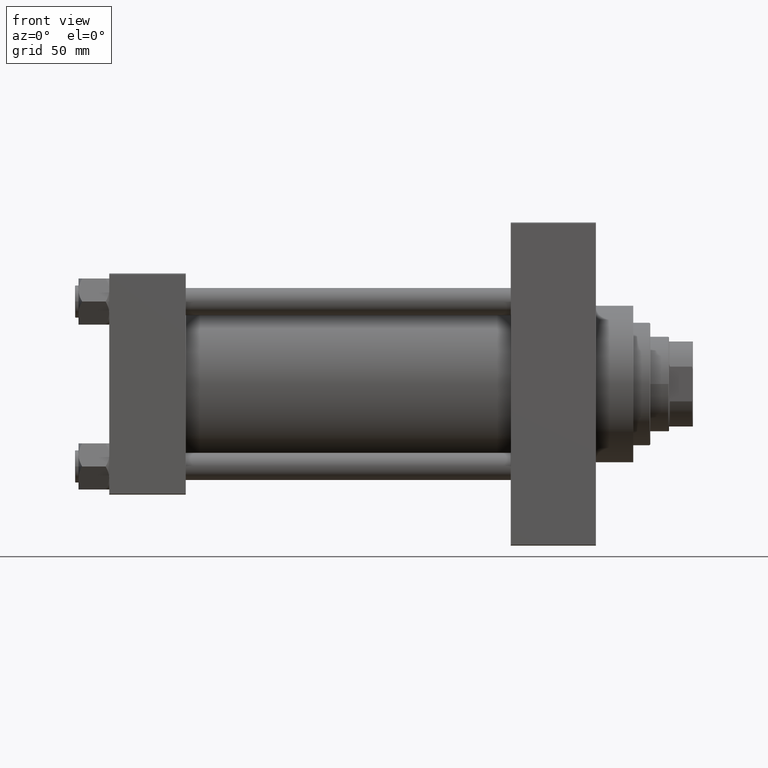
[diagram: clean part render]
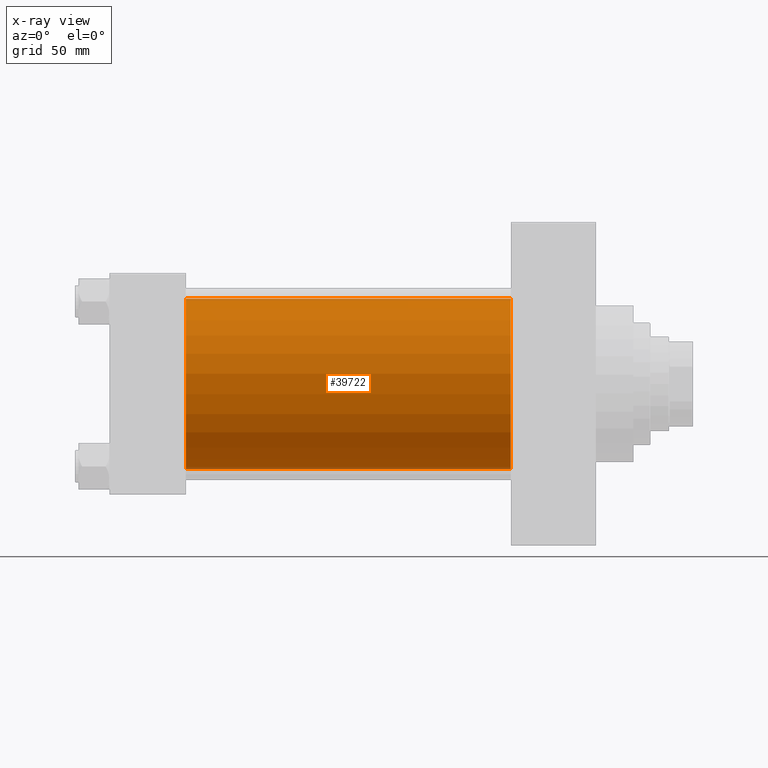
[diagram: x-ray — body ghosted, one internal face saturated and labeled with its STEP entity id]
A machine part, front view, then the same camera in x-ray: the body is ghosted and one INTERNAL B-rep face — a face not visible from any outside direction — is saturated and labeled: STEP entity #39722.
In plain terms, the highlighted cylindrical surface (partial cylindrical patch) has radius 50 mm, axis along (-1, -0, -0).
Its self-contained STEP definition (entity closure, byte-faithful):
#915 = DIRECTION ( 'NONE',  ( 0.000000000000000000, 0.000000000000000000, -1.000000000000000000 ) ) ;
#1973 = DIRECTION ( 'NONE',  ( 0.000000000000000000, 0.000000000000000000, -1.000000000000000000 ) ) ;
#2129 = EDGE_CURVE ( 'NONE', #14960, #21451, #6153, .T. ) ;
#3793 = CYLINDRICAL_SURFACE ( 'NONE', #22388, 50.00000000000000000 ) ;
#5169 = LINE ( 'NONE', #13347, #45187 ) ;
#6153 = LINE ( 'NONE', #12915, #45536 ) ;
#7428 = DIRECTION ( 'NONE',  ( -1.000000000000000000, -0.000000000000000000, -0.000000000000000000 ) ) ;
#12915 = CARTESIAN_POINT ( 'NONE',  ( 236.0000000000000000, 3.521148781771555838E-15, -50.00000000000000000 ) ) ;
#13347 = CARTESIAN_POINT ( 'NONE',  ( 236.0000000000000000, -2.602085213965210642E-15, 50.00000000000000000 ) ) ;
#13722 = CARTESIAN_POINT ( 'NONE',  ( 236.0000000000000000, 3.521148781771555838E-15, -50.00000000000000000 ) ) ;
#13768 = DIRECTION ( 'NONE',  ( 1.000000000000000000, 0.000000000000000000, 0.000000000000000000 ) ) ;
#14229 = CARTESIAN_POINT ( 'NONE',  ( 45.00000000000000000, 3.521148781771555838E-15, -50.00000000000000000 ) ) ;
#14960 = VERTEX_POINT ( 'NONE', #13722 ) ;
#16284 = CIRCLE ( 'NONE', #21699, 50.00000000000000000 ) ;
#18551 = EDGE_CURVE ( 'NONE', #20123, #21451, #42743, .T. ) ;
#19017 = CARTESIAN_POINT ( 'NONE',  ( 236.0000000000000000, -2.602085213965210642E-15, 0.000000000000000000 ) ) ;
#20123 = VERTEX_POINT ( 'NONE', #29374 ) ;
#20783 = CARTESIAN_POINT ( 'NONE',  ( 45.00000000000000000, -2.602085213965210642E-15, 0.000000000000000000 ) ) ;
#21451 = VERTEX_POINT ( 'NONE', #14229 ) ;
#21699 = AXIS2_PLACEMENT_3D ( 'NONE', #19017, #41477, #915 ) ;
#21889 = DIRECTION ( 'NONE',  ( 0.000000000000000000, 0.000000000000000000, 1.000000000000000000 ) ) ;
#21922 = AXIS2_PLACEMENT_3D ( 'NONE', #20783, #13768, #1973 ) ;
#22388 = AXIS2_PLACEMENT_3D ( 'NONE', #25268, #7428, #21889 ) ;
#23018 = ORIENTED_EDGE ( 'NONE', *, *, #25486, .F. ) ;
#23993 = ORIENTED_EDGE ( 'NONE', *, *, #18551, .F. ) ;
#24738 = ORIENTED_EDGE ( 'NONE', *, *, #41453, .T. ) ;
#25268 = CARTESIAN_POINT ( 'NONE',  ( 236.0000000000000000, -2.602085213965210642E-15, 0.000000000000000000 ) ) ;
#25486 = EDGE_CURVE ( 'NONE', #37900, #20123, #5169, .T. ) ;
#28406 = CARTESIAN_POINT ( 'NONE',  ( 236.0000000000000000, -2.602085213965210642E-15, 50.00000000000000000 ) ) ;
#29374 = CARTESIAN_POINT ( 'NONE',  ( 45.00000000000000000, -2.602085213965210642E-15, 50.00000000000000000 ) ) ;
#32216 = ORIENTED_EDGE ( 'NONE', *, *, #2129, .T. ) ;
#36135 = FACE_OUTER_BOUND ( 'NONE', #42010, .T. ) ;
#37900 = VERTEX_POINT ( 'NONE', #28406 ) ;
#38932 = DIRECTION ( 'NONE',  ( -1.000000000000000000, -0.000000000000000000, -0.000000000000000000 ) ) ;
#39722 = ADVANCED_FACE ( 'NONE', ( #36135 ), #3793, .F. ) ;
#41453 = EDGE_CURVE ( 'NONE', #37900, #14960, #16284, .T. ) ;
#41477 = DIRECTION ( 'NONE',  ( 1.000000000000000000, 0.000000000000000000, 0.000000000000000000 ) ) ;
#42010 = EDGE_LOOP ( 'NONE', ( #24738, #32216, #23993, #23018 ) ) ;
#42743 = CIRCLE ( 'NONE', #21922, 50.00000000000000000 ) ;
#45187 = VECTOR ( 'NONE', #38932, 1000.000000000000000 ) ;
#45536 = VECTOR ( 'NONE', #46213, 1000.000000000000000 ) ;
#46213 = DIRECTION ( 'NONE',  ( -1.000000000000000000, -0.000000000000000000, -0.000000000000000000 ) ) ;